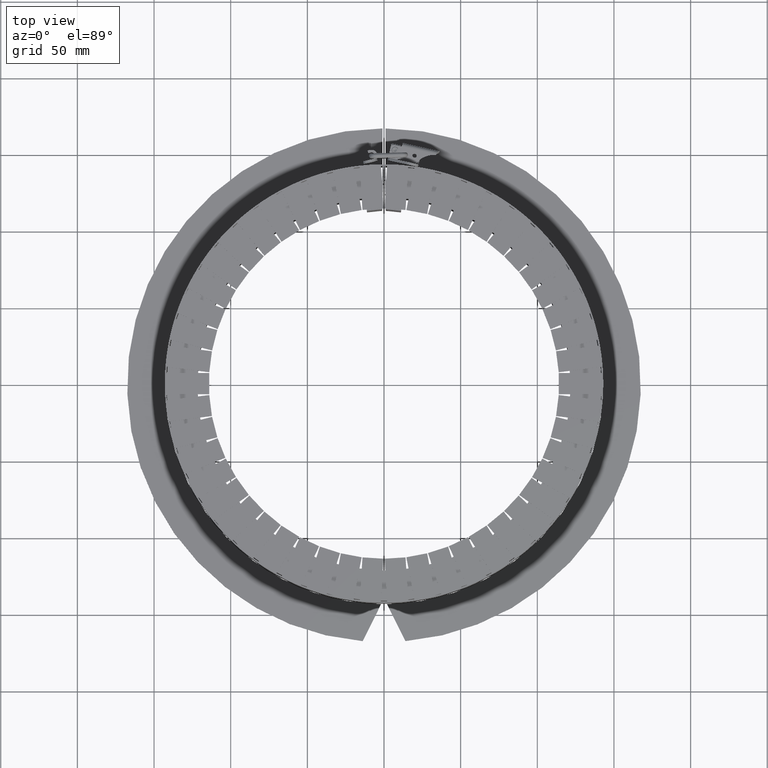
[diagram: clean part render]
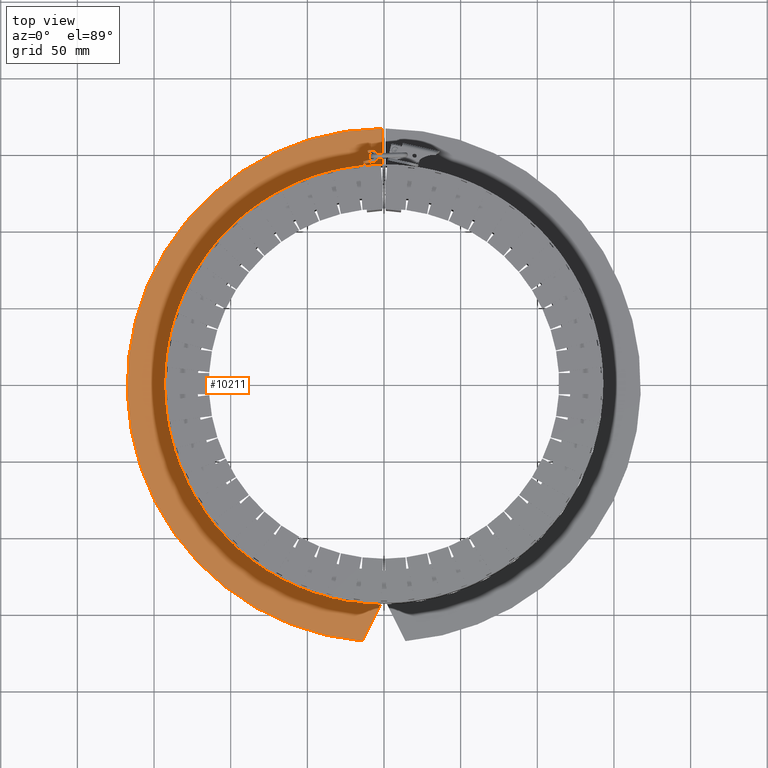
[diagram: same view with one face highlighted and labeled with its STEP entity id]
A machine part, top view. The second image highlights one B-rep face of the part: STEP entity #10211.
In plain terms, the highlighted planar face has unit normal (0, 0, -1).
Its self-contained STEP definition (entity closure, byte-faithful):
#10075=CARTESIAN_POINT('',(-2.000000000000018,-142.98601330200097,-26.950000000000003));
#10076=VERTEX_POINT('',#10075);
#10083=CARTESIAN_POINT('',(-13.932807335226638,-166.91952216490279,-26.950000000000003));
#10084=VERTEX_POINT('',#10083);
#10085=CARTESIAN_POINT('',(-13.932807335226638,-166.91952216490279,-26.950000000000003));
#10086=DIRECTION('',(0.446197813109808,0.894934361602025,0.0));
#10087=VECTOR('',#10086,26.743312012356252);
#10088=LINE('',#10085,#10087);
#10089=EDGE_CURVE('',#10084,#10076,#10088,.T.);
#10114=CARTESIAN_POINT('',(-0.999999999999983,142.99650345375582,-26.950000000000003));
#10115=VERTEX_POINT('',#10114);
#10122=CARTESIAN_POINT('',(0.0,0.0,-26.950000000000003));
#10123=DIRECTION('',(0.0,0.0,-1.0));
#10124=DIRECTION('',(-0.013986013986014,-0.999902190923084,0.0));
#10125=AXIS2_PLACEMENT_3D('',#10122,#10123,#10124);
#10126=CIRCLE('',#10125,143.0);
#10127=EDGE_CURVE('',#10076,#10115,#10126,.T.);
#10146=CARTESIAN_POINT('',(-0.99999999999998,167.49701489877364,-26.950000000000003));
#10147=VERTEX_POINT('',#10146);
#10154=CARTESIAN_POINT('',(-0.999999999999983,142.99650345375582,-26.950000000000003));
#10155=DIRECTION('',(0.0,1.0,0.0));
#10156=VECTOR('',#10155,24.500511445017821);
#10157=LINE('',#10154,#10156);
#10158=EDGE_CURVE('',#10115,#10147,#10157,.T.);
#10177=CARTESIAN_POINT('',(0.0,0.0,-26.950000000000003));
#10178=DIRECTION('',(0.0,0.0,1.0));
#10179=DIRECTION('',(0.083180939314786,0.996534460685987,0.0));
#10180=AXIS2_PLACEMENT_3D('',#10177,#10178,#10179);
#10181=CIRCLE('',#10180,167.50000000000003);
#10182=EDGE_CURVE('',#10147,#10084,#10181,.T.);
#10200=CARTESIAN_POINT('',(-87.282961686643631,1.741001742219569,-26.950000000000003));
#10201=DIRECTION('',(0.0,0.0,-1.0));
#10202=DIRECTION('',(-1.0,0.0,0.0));
#10203=AXIS2_PLACEMENT_3D('',#10200,#10201,#10202);
#10204=PLANE('',#10203);
#10205=ORIENTED_EDGE('',*,*,#10182,.T.);
#10206=ORIENTED_EDGE('',*,*,#10089,.T.);
#10207=ORIENTED_EDGE('',*,*,#10127,.T.);
#10208=ORIENTED_EDGE('',*,*,#10158,.T.);
#10209=EDGE_LOOP('',(#10205,#10206,#10207,#10208));
#10210=FACE_OUTER_BOUND('',#10209,.T.);
#10211=ADVANCED_FACE('',(#10210),#10204,.F.);